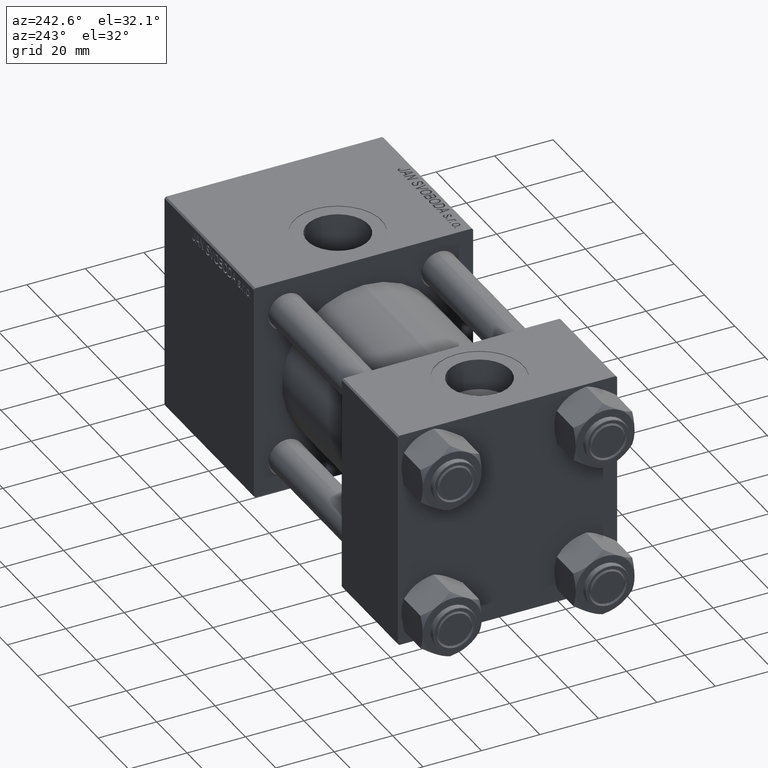
[diagram: clean part render]
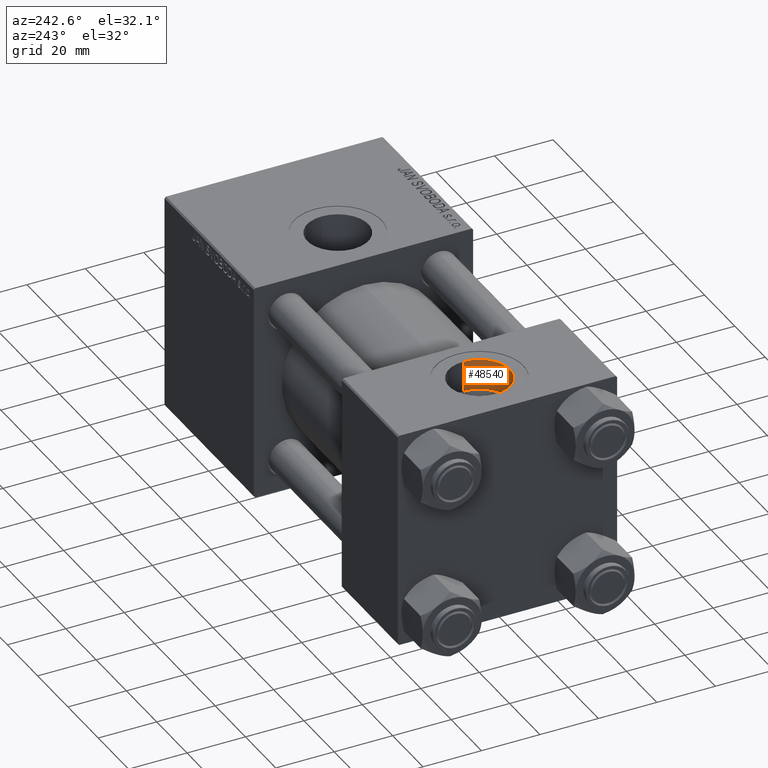
[diagram: same view with one face highlighted and labeled with its STEP entity id]
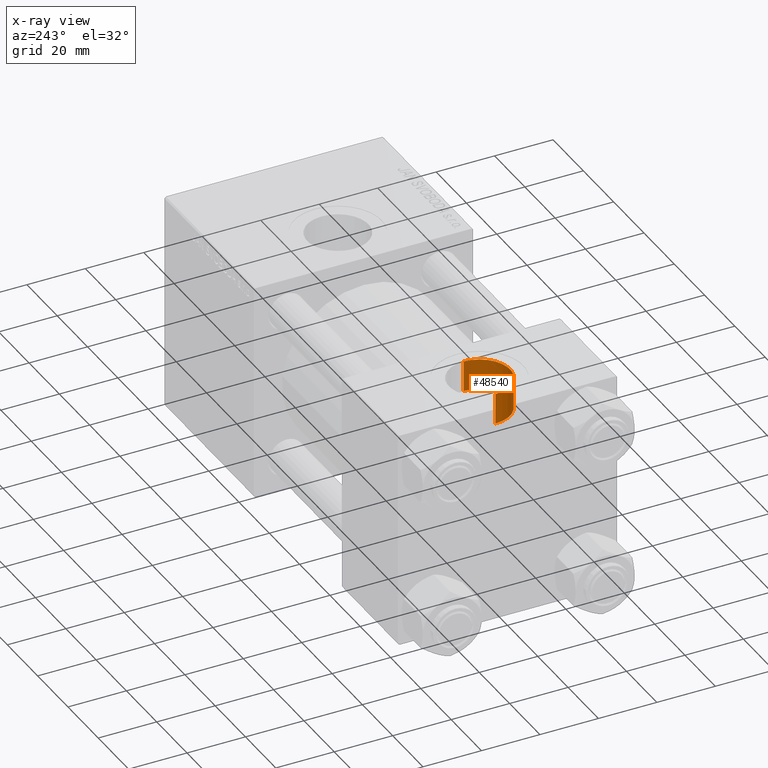
[diagram: x-ray of the same camera — body ghosted, the highlighted face saturated]
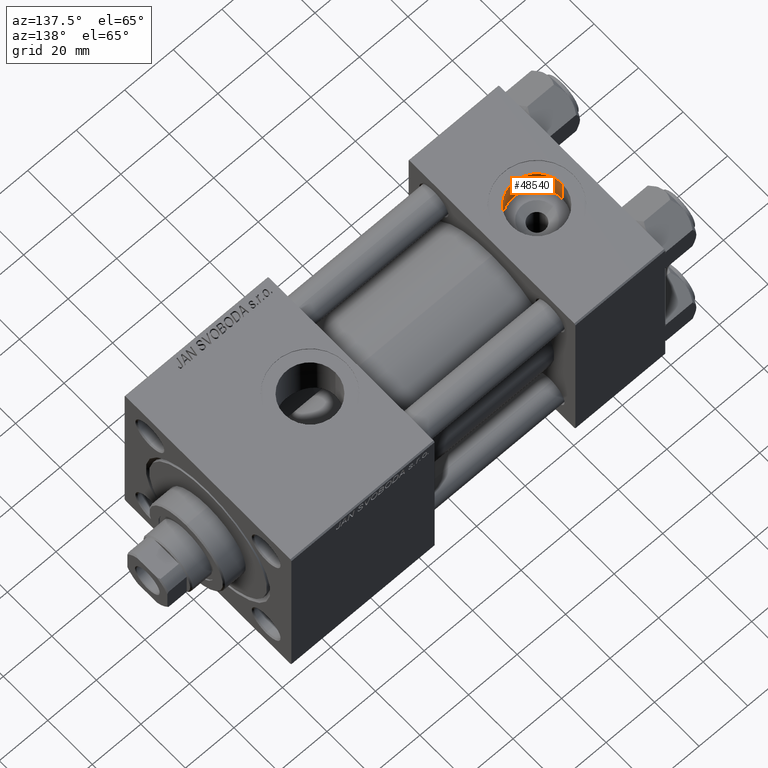
[diagram: same view with one face highlighted and labeled with its STEP entity id]
A machine part, auxiliary view. The second image highlights one B-rep face of the part: STEP entity #48540.
The next image is the same camera in x-ray: the body ghosted, the highlighted face saturated — about 0% of this face is hidden behind the body in this view.
A second angle (auxiliary view) of the same face is appended — the face is thin or edge-on in the first view.
In plain terms, the highlighted cylindrical surface (edge-blend (fillet) strip) has radius 10.48 mm, axis along (0, 0, 1).
Its self-contained STEP definition (entity closure, byte-faithful):
#1779 = LINE ( 'NONE', #32248, #14952 ) ;
#4879 = CARTESIAN_POINT ( 'NONE',  ( 8.019999999999999574, -3.920740582423995006E-15, 26.69999999999999929 ) ) ;
#4903 = DIRECTION ( 'NONE',  ( 1.000000000000000000, 0.000000000000000000, 0.000000000000000000 ) ) ;
#6561 = CARTESIAN_POINT ( 'NONE',  ( 18.50000000000000000, -5.204170427930421283E-15, 26.69999999999999929 ) ) ;
#7248 = ORIENTED_EDGE ( 'NONE', *, *, #28937, .T. ) ;
#8728 = CYLINDRICAL_SURFACE ( 'NONE', #45022, 10.48000000000000043 ) ;
#9219 = DIRECTION ( 'NONE',  ( -0.000000000000000000, -0.000000000000000000, 1.000000000000000000 ) ) ;
#10259 = CARTESIAN_POINT ( 'NONE',  ( 28.98000000000000043, -5.204170427930421283E-15, 26.69999999999999929 ) ) ;
#12234 = EDGE_CURVE ( 'NONE', #12474, #15604, #21583, .T. ) ;
#12315 = DIRECTION ( 'NONE',  ( 0.000000000000000000, 0.000000000000000000, 1.000000000000000000 ) ) ;
#12474 = VERTEX_POINT ( 'NONE', #18632 ) ;
#14249 = AXIS2_PLACEMENT_3D ( 'NONE', #39240, #12315, #27815 ) ;
#14952 = VECTOR ( 'NONE', #28947, 1000.000000000000000 ) ;
#15604 = VERTEX_POINT ( 'NONE', #25737 ) ;
#18632 = CARTESIAN_POINT ( 'NONE',  ( 8.019999999999999574, -3.920740582423995006E-15, 37.29999999999999716 ) ) ;
#18727 = DIRECTION ( 'NONE',  ( 1.000000000000000000, 0.000000000000000000, 0.000000000000000000 ) ) ;
#18979 = VERTEX_POINT ( 'NONE', #10259 ) ;
#20142 = CARTESIAN_POINT ( 'NONE',  ( 18.50000000000000000, -5.204170427930421283E-15, 26.69999999999999929 ) ) ;
#21583 = CIRCLE ( 'NONE', #14249, 10.48000000000000043 ) ;
#22140 = CARTESIAN_POINT ( 'NONE',  ( 8.019999999999999574, -3.920740582423995006E-15, 26.69999999999999929 ) ) ;
#25737 = CARTESIAN_POINT ( 'NONE',  ( 28.98000000000000043, -5.204170427930421283E-15, 37.29999999999999716 ) ) ;
#27815 = DIRECTION ( 'NONE',  ( 1.000000000000000000, 0.000000000000000000, 0.000000000000000000 ) ) ;
#28937 = EDGE_CURVE ( 'NONE', #41479, #12474, #49296, .T. ) ;
#28947 = DIRECTION ( 'NONE',  ( -0.000000000000000000, -0.000000000000000000, 1.000000000000000000 ) ) ;
#29708 = AXIS2_PLACEMENT_3D ( 'NONE', #6561, #34474, #18727 ) ;
#29941 = ORIENTED_EDGE ( 'NONE', *, *, #30719, .F. ) ;
#30719 = EDGE_CURVE ( 'NONE', #41479, #18979, #32936, .T. ) ;
#32248 = CARTESIAN_POINT ( 'NONE',  ( 28.98000000000000043, -5.204170427930421283E-15, 26.69999999999999929 ) ) ;
#32320 = FACE_OUTER_BOUND ( 'NONE', #36898, .T. ) ;
#32936 = CIRCLE ( 'NONE', #29708, 10.48000000000000043 ) ;
#34474 = DIRECTION ( 'NONE',  ( 0.000000000000000000, 0.000000000000000000, 1.000000000000000000 ) ) ;
#36118 = VECTOR ( 'NONE', #37625, 1000.000000000000000 ) ;
#36898 = EDGE_LOOP ( 'NONE', ( #29941, #7248, #39561, #39512 ) ) ;
#37625 = DIRECTION ( 'NONE',  ( -0.000000000000000000, -0.000000000000000000, 1.000000000000000000 ) ) ;
#39240 = CARTESIAN_POINT ( 'NONE',  ( 18.50000000000000000, -5.204170427930421283E-15, 37.29999999999999716 ) ) ;
#39512 = ORIENTED_EDGE ( 'NONE', *, *, #42967, .F. ) ;
#39561 = ORIENTED_EDGE ( 'NONE', *, *, #12234, .T. ) ;
#41479 = VERTEX_POINT ( 'NONE', #4879 ) ;
#42967 = EDGE_CURVE ( 'NONE', #18979, #15604, #1779, .T. ) ;
#45022 = AXIS2_PLACEMENT_3D ( 'NONE', #20142, #9219, #4903 ) ;
#48540 = ADVANCED_FACE ( 'NONE', ( #32320 ), #8728, .F. ) ;
#49296 = LINE ( 'NONE', #22140, #36118 ) ;